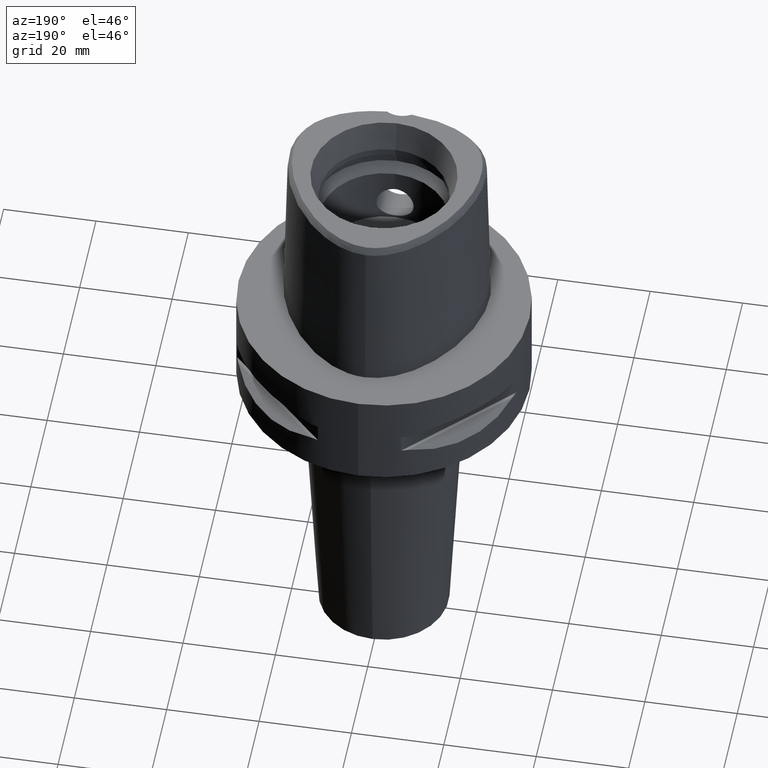
[diagram: clean part render]
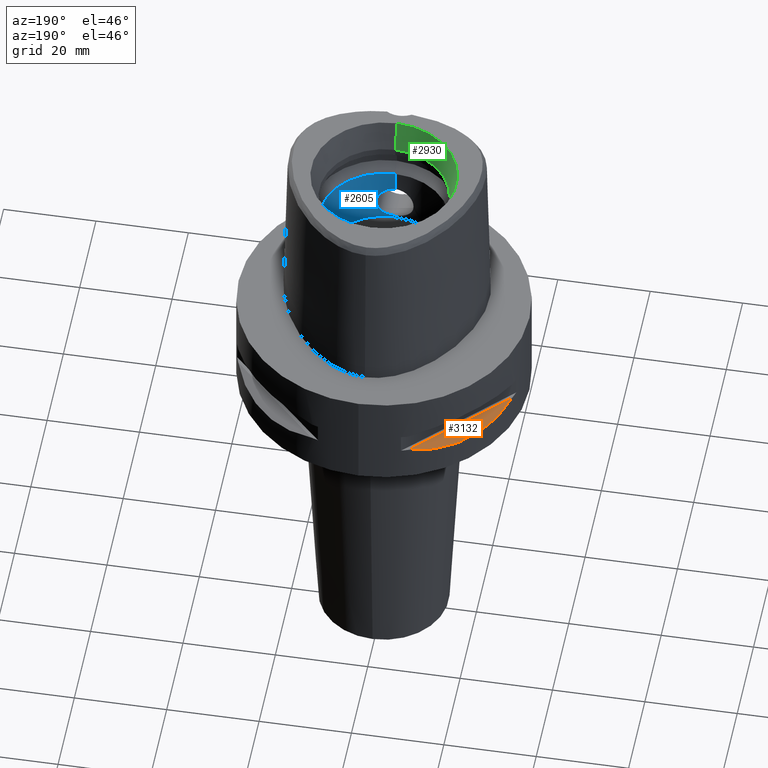
[diagram: same view with three faces highlighted in distinct colors, each labeled with its STEP entity id]
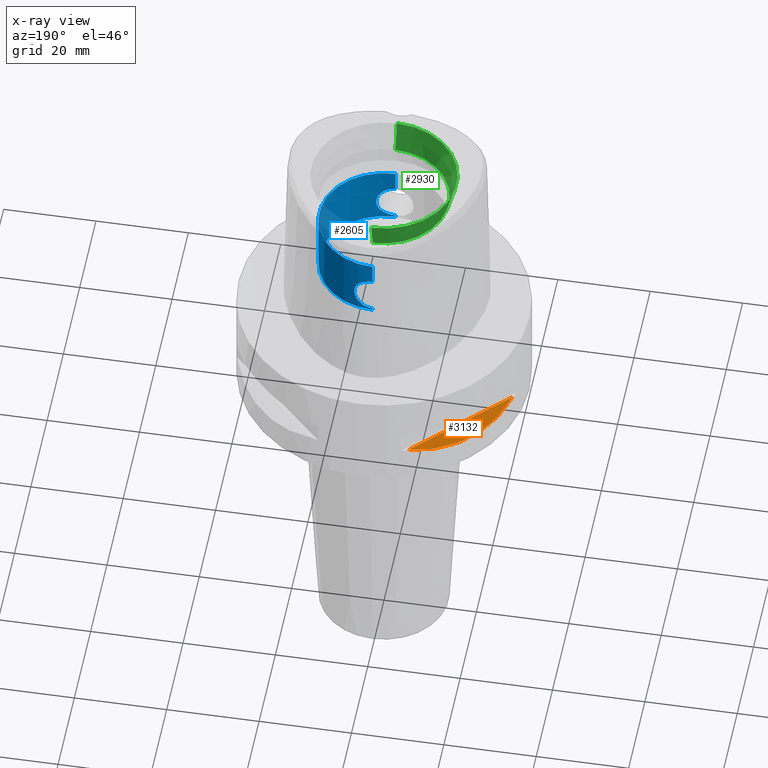
[diagram: x-ray of the same camera — body ghosted, the three highlighted faces saturated]
A machine part, auxiliary view with three faces highlighted in distinct colors.
The next image is the same camera in x-ray (body ghosted, the three faces saturated) — at least one of them is partly hidden behind the body in this view.
Their STEP definitions:

[orange] entity #3132 — the highlighted planar face has unit normal (0.3536, -0.3536, -0.866).
#408=CARTESIAN_POINT('',(-1.044775724750E1,2.971690375018E1,-1.405E1));
#409=CARTESIAN_POINT('',(-1.282388988809E1,2.888151197365E1,-1.467900482380E1));
#410=CARTESIAN_POINT('',(-1.711282138769E1,2.674739463903E1,-1.555870402293E1));
#411=CARTESIAN_POINT('',(-2.244574140438E1,2.244574140438E1,-1.597971692371E1));
#412=CARTESIAN_POINT('',(-2.674739463903E1,1.711282138769E1,-1.555870402293E1));
#413=CARTESIAN_POINT('',(-2.888151197365E1,1.282388988809E1,-1.467900482380E1));
#414=CARTESIAN_POINT('',(-2.971690375018E1,1.044775724750E1,-1.405E1));
#1336=DIRECTION('',(-7.071067811865E-1,-7.071067811865E-1,0.E0));
#1337=VECTOR('',#1336,2.725068831944E1);
#1338=CARTESIAN_POINT('',(-1.044775724750E1,2.971690375018E1,-1.405E1));
#1339=LINE('',#1338,#1337);
#1454=CARTESIAN_POINT('',(-1.044775724750E1,2.971690375018E1,-1.405E1));
#1455=VERTEX_POINT('',#1454);
#1456=VERTEX_POINT('',#414);
#3123=CARTESIAN_POINT('',(-3.776000002850E1,2.404660969175E0,-1.405E1));
#3124=DIRECTION('',(3.535533905933E-1,-3.535533905933E-1,-8.660254037844E-1));
#3125=DIRECTION('',(-6.123724356958E-1,6.123724356958E-1,-5.E-1));
#3126=AXIS2_PLACEMENT_3D('',#3123,#3124,#3125);
#3127=PLANE('',#3126);
#3128=ORIENTED_EDGE('',*,*,#2285,.F.);
#3129=ORIENTED_EDGE('',*,*,#3116,.T.);
#3130=EDGE_LOOP('',(#3128,#3129));
#3131=FACE_OUTER_BOUND('',#3130,.F.);
#415=B_SPLINE_CURVE_WITH_KNOTS('',3,(#408,#409,#410,#411,#412,#413,#414),
.UNSPECIFIED.,.F.,.F.,(4,1,1,1,4),(0.E0,2.5E-1,5.E-1,7.5E-1,1.E0),
.UNSPECIFIED.);
#2285=EDGE_CURVE('',#1455,#1456,#415,.T.);
#3116=EDGE_CURVE('',#1455,#1456,#1339,.T.);
#3132=ADVANCED_FACE('',(#3131),#3127,.F.);

[blue] entity #2605 — the highlighted cylindrical surface (partial cylindrical patch) has radius 14 mm, axis along (0, 0, -1).
#722=CARTESIAN_POINT('',(0.E0,0.E0,1.1E1));
#723=DIRECTION('',(0.E0,0.E0,-1.E0));
#724=DIRECTION('',(0.E0,1.E0,0.E0));
#725=AXIS2_PLACEMENT_3D('',#722,#723,#724);
#754=CARTESIAN_POINT('',(0.E0,1.4E1,1.145E1));
#755=CARTESIAN_POINT('',(3.257144545379E-1,1.4E1,1.145E1));
#756=CARTESIAN_POINT('',(9.593415615361E-1,1.397751429725E1,1.152681160103E1));
#757=CARTESIAN_POINT('',(1.868233590392E0,1.388409645246E1,1.186265110699E1));
#758=CARTESIAN_POINT('',(2.685009502818E0,1.374717101718E1,1.241480063107E1));
#759=CARTESIAN_POINT('',(3.352592352032E0,1.359691586393E1,1.315492608126E1));
#760=CARTESIAN_POINT('',(3.824718947743E0,1.346902389972E1,1.404865533159E1));
#761=CARTESIAN_POINT('',(4.059972485821E0,1.339843259849E1,1.500867324322E1));
#762=CARTESIAN_POINT('',(4.058768199920E0,1.339880595545E1,1.599234325395E1));
#763=CARTESIAN_POINT('',(3.830217828408E0,1.346733835159E1,1.693067896133E1));
#764=CARTESIAN_POINT('',(3.376548096141E0,1.359070487378E1,1.780819439894E1));
#765=CARTESIAN_POINT('',(2.721761822695E0,1.373987178788E1,1.855361803621E1));
#766=CARTESIAN_POINT('',(1.896707547861E0,1.388065541092E1,1.912490022073E1));
#767=CARTESIAN_POINT('',(9.657444874258E-1,1.397745693152E1,1.947305099177E1));
#768=CARTESIAN_POINT('',(3.272318661774E-1,1.4E1,1.955E1));
#769=CARTESIAN_POINT('',(0.E0,1.4E1,1.955E1));
#774=DIRECTION('',(0.E0,0.E0,1.E0));
#775=VECTOR('',#774,4.65E0);
#776=CARTESIAN_POINT('',(0.E0,1.4E1,1.955E1));
#777=LINE('',#776,#775);
#781=CARTESIAN_POINT('',(0.E0,-1.4E1,1.955E1));
#782=CARTESIAN_POINT('',(3.257061333188E-1,-1.4E1,1.955E1));
#783=CARTESIAN_POINT('',(9.593260942823E-1,-1.397751580988E1,1.947319364039E1));
#784=CARTESIAN_POINT('',(1.868259288005E0,-1.388409394846E1,1.913734030015E1));
#785=CARTESIAN_POINT('',(2.685056185638E0,-1.374716162752E1,1.858515917491E1));
#786=CARTESIAN_POINT('',(3.352605798371E0,-1.359691221125E1,1.784504796155E1));
#787=CARTESIAN_POINT('',(3.824737663849E0,-1.346901880628E1,1.695131699619E1));
#788=CARTESIAN_POINT('',(4.060003876242E0,-1.339842300871E1,1.599114806812E1));
#789=CARTESIAN_POINT('',(4.058737934530E0,-1.339881522562E1,1.500747844467E1));
#790=CARTESIAN_POINT('',(3.830191806853E0,-1.346734554971E1,1.406927337287E1));
#791=CARTESIAN_POINT('',(3.376535241766E0,-1.359070823933E1,1.319178275893E1));
#792=CARTESIAN_POINT('',(2.721722737381E0,-1.373987978096E1,1.244634769440E1));
#793=CARTESIAN_POINT('',(1.896685044685E0,-1.388065765475E1,1.187509187779E1));
#794=CARTESIAN_POINT('',(9.657585200220E-1,-1.397745554793E1,1.152695382942E1));
#795=CARTESIAN_POINT('',(3.272392978414E-1,-1.4E1,1.145E1));
#796=CARTESIAN_POINT('',(0.E0,-1.4E1,1.145E1));
#801=DIRECTION('',(0.E0,0.E0,1.E0));
#802=VECTOR('',#801,4.5E-1);
#803=CARTESIAN_POINT('',(0.E0,1.4E1,1.1E1));
#804=LINE('',#803,#802);
#842=DIRECTION('',(0.E0,0.E0,1.E0));
#843=VECTOR('',#842,4.65E0);
#844=CARTESIAN_POINT('',(0.E0,-1.4E1,1.955E1));
#845=LINE('',#844,#843);
#869=DIRECTION('',(0.E0,0.E0,1.E0));
#870=VECTOR('',#869,4.5E-1);
#871=CARTESIAN_POINT('',(0.E0,-1.4E1,1.1E1));
#872=LINE('',#871,#870);
#985=CARTESIAN_POINT('',(0.E0,0.E0,2.42E1));
#986=DIRECTION('',(0.E0,0.E0,1.E0));
#987=DIRECTION('',(0.E0,-1.E0,0.E0));
#988=AXIS2_PLACEMENT_3D('',#985,#986,#987);
#1536=CARTESIAN_POINT('',(0.E0,1.4E1,1.1E1));
#1537=CARTESIAN_POINT('',(0.E0,-1.4E1,1.1E1));
#1538=VERTEX_POINT('',#1536);
#1539=VERTEX_POINT('',#1537);
#1540=VERTEX_POINT('',#754);
#1541=VERTEX_POINT('',#769);
#1542=CARTESIAN_POINT('',(0.E0,1.4E1,2.42E1));
#1543=VERTEX_POINT('',#1542);
#1544=CARTESIAN_POINT('',(0.E0,-1.4E1,2.42E1));
#1545=VERTEX_POINT('',#1544);
#1546=CARTESIAN_POINT('',(0.E0,-1.4E1,1.955E1));
#1547=VERTEX_POINT('',#1546);
#1548=VERTEX_POINT('',#796);
#2583=CARTESIAN_POINT('',(0.E0,0.E0,3.99E1));
#2584=DIRECTION('',(0.E0,0.E0,-1.E0));
#2585=DIRECTION('',(0.E0,-1.E0,0.E0));
#2586=AXIS2_PLACEMENT_3D('',#2583,#2584,#2585);
#2587=CYLINDRICAL_SURFACE('',#2586,1.4E1);
#2589=ORIENTED_EDGE('',*,*,#2588,.T.);
#2591=ORIENTED_EDGE('',*,*,#2590,.T.);
#2593=ORIENTED_EDGE('',*,*,#2592,.F.);
#2595=ORIENTED_EDGE('',*,*,#2594,.F.);
#2597=ORIENTED_EDGE('',*,*,#2596,.T.);
#2599=ORIENTED_EDGE('',*,*,#2598,.F.);
#2600=ORIENTED_EDGE('',*,*,#2572,.F.);
#2602=ORIENTED_EDGE('',*,*,#2601,.T.);
#2603=EDGE_LOOP('',(#2589,#2591,#2593,#2595,#2597,#2599,#2600,#2602));
#2604=FACE_OUTER_BOUND('',#2603,.F.);
#726=CIRCLE('',#725,1.4E1);
#770=B_SPLINE_CURVE_WITH_KNOTS('',3,(#754,#755,#756,#757,#758,#759,#760,#761,
#762,#763,#764,#765,#766,#767,#768,#769),.UNSPECIFIED.,.F.,.F.,(4,1,1,1,1,1,1,1,
1,1,1,1,1,4),(0.E0,7.692307692308E-2,1.538461538462E-1,2.307692307692E-1,
3.076923076923E-1,3.846153846154E-1,4.615384615385E-1,5.384615384615E-1,
6.153846153846E-1,6.923076923077E-1,7.692307692308E-1,8.461538461538E-1,
9.230769230769E-1,1.E0),.UNSPECIFIED.);
#797=B_SPLINE_CURVE_WITH_KNOTS('',3,(#781,#782,#783,#784,#785,#786,#787,#788,
#789,#790,#791,#792,#793,#794,#795,#796),.UNSPECIFIED.,.F.,.F.,(4,1,1,1,1,1,1,1,
1,1,1,1,1,4),(0.E0,7.692307692308E-2,1.538461538462E-1,2.307692307692E-1,
3.076923076923E-1,3.846153846154E-1,4.615384615385E-1,5.384615384615E-1,
6.153846153846E-1,6.923076923077E-1,7.692307692308E-1,8.461538461538E-1,
9.230769230769E-1,1.E0),.UNSPECIFIED.);
#989=CIRCLE('',#988,1.4E1);
#2572=EDGE_CURVE('',#1538,#1539,#726,.T.);
#2588=EDGE_CURVE('',#1540,#1541,#770,.T.);
#2590=EDGE_CURVE('',#1541,#1543,#777,.T.);
#2592=EDGE_CURVE('',#1545,#1543,#989,.T.);
#2594=EDGE_CURVE('',#1547,#1545,#845,.T.);
#2596=EDGE_CURVE('',#1547,#1548,#797,.T.);
#2598=EDGE_CURVE('',#1539,#1548,#872,.T.);
#2601=EDGE_CURVE('',#1538,#1540,#804,.T.);
#2605=ADVANCED_FACE('',(#2604),#2587,.F.);

[green] entity #2930 — the highlighted conical surface has half-angle 15 deg.
#120=CARTESIAN_POINT('',(0.E0,0.E0,3.8E1));
#121=DIRECTION('',(0.E0,0.E0,1.E0));
#122=DIRECTION('',(0.E0,1.E0,0.E0));
#123=AXIS2_PLACEMENT_3D('',#120,#121,#122);
#1084=CARTESIAN_POINT('',(0.E0,0.E0,3.16E1));
#1085=DIRECTION('',(0.E0,0.E0,1.E0));
#1086=DIRECTION('',(0.E0,1.E0,0.E0));
#1087=AXIS2_PLACEMENT_3D('',#1084,#1085,#1086);
#1092=DIRECTION('',(0.E0,-2.588190451026E-1,9.659258262891E-1));
#1093=VECTOR('',#1092,6.625767554625E0);
#1094=CARTESIAN_POINT('',(0.E0,-1.4E1,3.16E1));
#1095=LINE('',#1094,#1093);
#1107=DIRECTION('',(0.E0,2.588190451026E-1,9.659258262891E-1));
#1108=VECTOR('',#1107,6.625767554625E0);
#1109=CARTESIAN_POINT('',(0.E0,1.4E1,3.16E1));
#1110=LINE('',#1109,#1108);
#1421=CARTESIAN_POINT('',(0.E0,1.571487483156E1,3.8E1));
#1422=CARTESIAN_POINT('',(0.E0,-1.571487483156E1,3.8E1));
#1423=VERTEX_POINT('',#1421);
#1424=VERTEX_POINT('',#1422);
#1565=CARTESIAN_POINT('',(0.E0,-1.4E1,3.16E1));
#1566=VERTEX_POINT('',#1565);
#1567=CARTESIAN_POINT('',(0.E0,1.4E1,3.16E1));
#1568=VERTEX_POINT('',#1567);
#2917=CARTESIAN_POINT('',(0.E0,0.E0,3.48E1));
#2918=DIRECTION('',(0.E0,0.E0,1.E0));
#2919=DIRECTION('',(0.E0,1.E0,0.E0));
#2920=AXIS2_PLACEMENT_3D('',#2917,#2918,#2919);
#2921=CONICAL_SURFACE('',#2920,1.485743741578E1,1.5E1);
#2922=ORIENTED_EDGE('',*,*,#1584,.F.);
#2924=ORIENTED_EDGE('',*,*,#2923,.F.);
#2925=ORIENTED_EDGE('',*,*,#2910,.T.);
#2927=ORIENTED_EDGE('',*,*,#2926,.T.);
#2928=EDGE_LOOP('',(#2922,#2924,#2925,#2927));
#2929=FACE_OUTER_BOUND('',#2928,.F.);
#124=CIRCLE('',#123,1.571487483156E1);
#1088=CIRCLE('',#1087,1.4E1);
#1584=EDGE_CURVE('',#1423,#1424,#124,.T.);
#2910=EDGE_CURVE('',#1568,#1566,#1088,.T.);
#2923=EDGE_CURVE('',#1568,#1423,#1110,.T.);
#2926=EDGE_CURVE('',#1566,#1424,#1095,.T.);
#2930=ADVANCED_FACE('',(#2929),#2921,.F.);